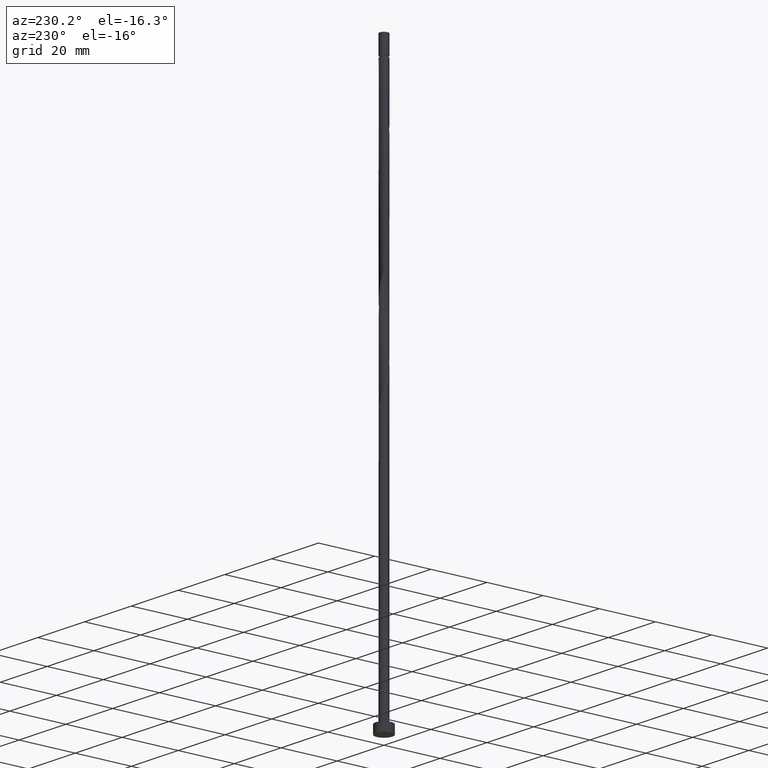
[diagram: clean part render]
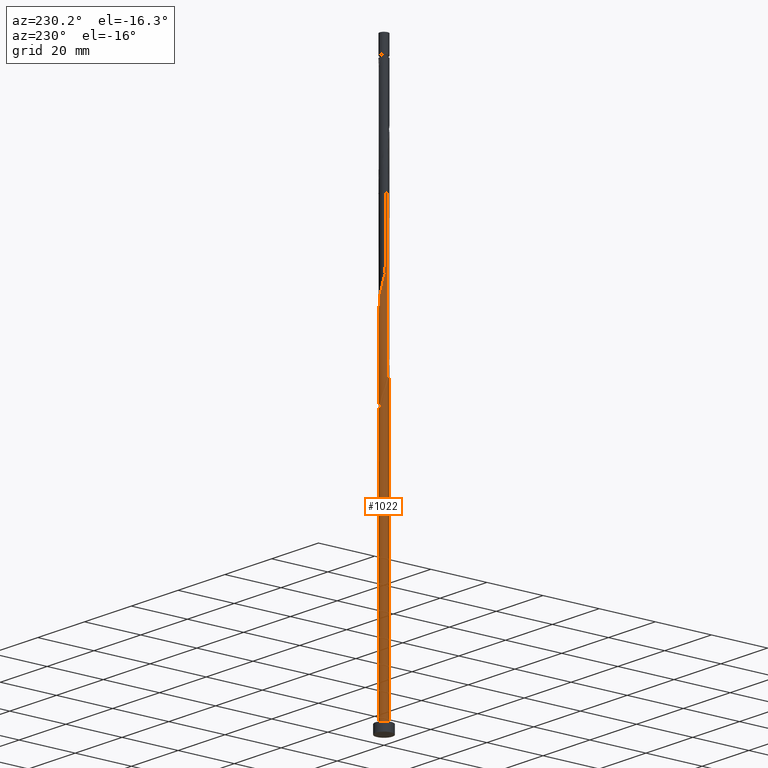
[diagram: same view with one face highlighted and labeled with its STEP entity id]
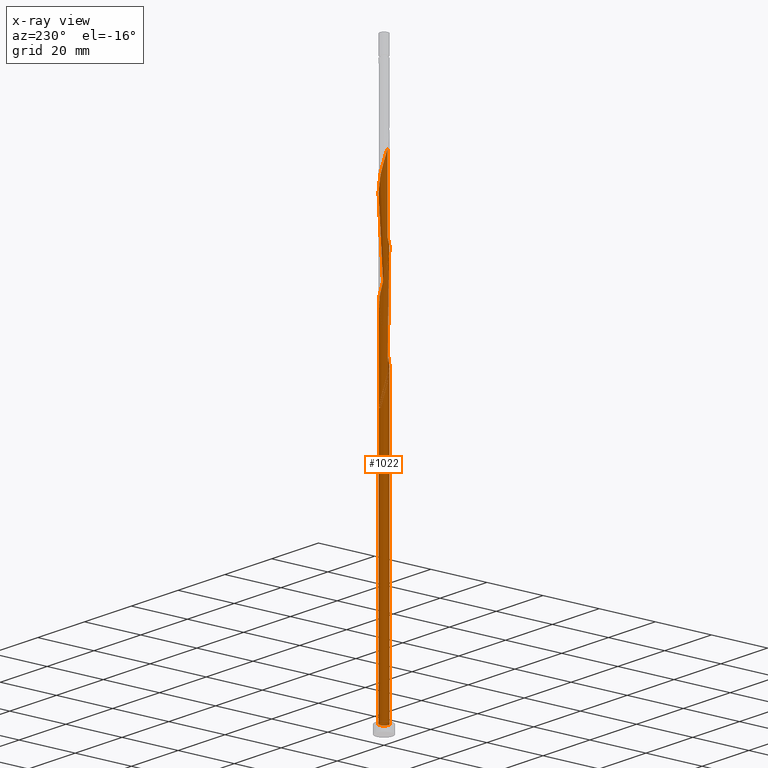
[diagram: x-ray of the same camera — body ghosted, the highlighted face saturated]
A machine part, auxiliary view. The second image highlights one B-rep face of the part: STEP entity #1022.
The next image is the same camera in x-ray: the body ghosted, the highlighted face saturated — about 0% of this face is hidden behind the body in this view.
In plain terms, the highlighted cylindrical surface (bore or boss wall) has radius 1.5 mm, axis along (-0, -0, -1).
Its self-contained STEP definition (entity closure, byte-faithful):
#4 = CARTESIAN_POINT ( 'NONE',  ( -0.6637447469323254357, -1.359573744300763609, 139.4728078568822696 ) ) ;
#14 = CARTESIAN_POINT ( 'NONE',  ( -0.8455530274166278559, 1.254606684622248558, 128.3616967457711837 ) ) ;
#25 = CARTESIAN_POINT ( 'NONE',  ( 1.509297774348952625, 0.1049670596785136911, 150.5839189679933554 ) ) ;
#33 = CARTESIAN_POINT ( 'NONE',  ( 0.9930117713720183481, 1.141457610771798192, 154.7505856346600410 ) ) ;
#58 = CARTESIAN_POINT ( 'NONE',  ( 0.1049670596785151205, 1.509297774348950849, 93.63947452354895518 ) ) ;
#61 = CARTESIAN_POINT ( 'NONE',  ( -0.6687892150010436021, 1.342654455136649938, 94.33391896799336962 ) ) ;
#117 = CARTESIAN_POINT ( 'NONE',  ( -0.9930117713720176820, -1.141457610771798636, 104.7505856346600552 ) ) ;
#123 = CARTESIAN_POINT ( 'NONE',  ( -0.9930117713720176820, -1.141457610771798636, 138.0839189679934123 ) ) ;
#131 = VERTEX_POINT ( 'NONE', #1260 ) ;
#133 = CARTESIAN_POINT ( 'NONE',  ( 0.6637447469323256577, 1.359573744300763387, 122.8061411902156124 ) ) ;
#142 = CARTESIAN_POINT ( 'NONE',  ( -1.123809227997133009, -0.9935053190942130241, 137.3894745235489552 ) ) ;
#152 = CARTESIAN_POINT ( 'NONE',  ( 0.2892446148792531257, 1.485037173957477030, 124.1950300791044839 ) ) ;
#159 = CARTESIAN_POINT ( 'NONE',  ( 0.8455530274166269677, -1.254606684622249224, 145.0283634124378409 ) ) ;
#168 = CARTESIAN_POINT ( 'NONE',  ( 0.2984962311319874217, 1.470000000000000195, 92.94503007910451231 ) ) ;
#171 = CARTESIAN_POINT ( 'NONE',  ( -1.250515677536281789, 0.8283782591521712257, 97.11169674577118371 ) ) ;
#182 = CARTESIAN_POINT ( 'NONE',  ( -0.6687892150010436021, 1.342654455136649938, 161.0005856346599842 ) ) ;
#190 = CARTESIAN_POINT ( 'NONE',  ( -0.09213877760036824627, 1.497167474153212607, 94.33391896799339804 ) ) ;
#198 = EDGE_CURVE ( 'NONE', #1136, #627, #1579, .T. ) ;
#213 = CARTESIAN_POINT ( 'NONE',  ( -1.470000000000001528, -0.2984962311319871442, 101.2783634124377983 ) ) ;
#221 = CARTESIAN_POINT ( 'NONE',  ( -0.8283782591521712257, -1.250515677536281123, 105.4450300791044839 ) ) ;
#228 = CARTESIAN_POINT ( 'NONE',  ( 1.500000000000000222, 0.000000000000000000, 3.000000000000000000 ) ) ;
#250 = ORIENTED_EDGE ( 'NONE', *, *, #878, .F. ) ;
#256 = CARTESIAN_POINT ( 'NONE',  ( 1.250515677536280901, -0.8283782591521717809, 147.1116967457712121 ) ) ;
#267 = CARTESIAN_POINT ( 'NONE',  ( 1.141457610771798636, -0.9930117713720176820, 146.4172523013266698 ) ) ;
#275 = CARTESIAN_POINT ( 'NONE',  ( -1.509297774348952625, -0.1049670596785148846, 133.9172523013266982 ) ) ;
#278 = ORIENTED_EDGE ( 'NONE', *, *, #951, .T. ) ;
#283 = CARTESIAN_POINT ( 'NONE',  ( 1.254606684622249224, 0.8455530274166267457, 153.3616967457711837 ) ) ;
#287 = CARTESIAN_POINT ( 'NONE',  ( -1.141457610771799080, 0.9930117713720173489, 96.41725230132672664 ) ) ;
#297 = CARTESIAN_POINT ( 'NONE',  ( -0.9935053190942132462, 1.123809227997133009, 95.72280785688226956 ) ) ;
#301 = CARTESIAN_POINT ( 'NONE',  ( -1.250515677536281789, 0.8283782591521712257, 163.7783634124377841 ) ) ;
#304 = EDGE_CURVE ( 'NONE', #739, #996, #353, .T. ) ;
#308 = DIRECTION ( 'NONE',  ( 1.000000000000000000, 0.000000000000000000, 0.000000000000000000 ) ) ;
#310 = CARTESIAN_POINT ( 'NONE',  ( -1.485037173957477030, 0.2892446148792523486, 165.8616967457711837 ) ) ;
#317 = CARTESIAN_POINT ( 'NONE',  ( -0.4764946809057876154, 1.422305459129118654, 95.72280785688229798 ) ) ;
#325 = CARTESIAN_POINT ( 'NONE',  ( -1.500000000000000222, 0.000000000000000000, 3.000000000000000000 ) ) ;
#349 = DIRECTION ( 'NONE',  ( -1.000000000000000000, 0.000000000000000000, 0.000000000000000000 ) ) ;
#353 = CIRCLE ( 'NONE', #692, 1.500000000000000222 ) ;
#364 = AXIS2_PLACEMENT_3D ( 'NONE', #925, #932, #1187 ) ;
#365 = CARTESIAN_POINT ( 'NONE',  ( -1.500000000000001998, -1.652393181019979830E-15, 100.2147967572277878 ) ) ;
#380 = CARTESIAN_POINT ( 'NONE',  ( -1.422305459129119987, 0.4764946809057889476, 131.8339189679933838 ) ) ;
#387 = CARTESIAN_POINT ( 'NONE',  ( 1.422305459129119987, -0.4764946809057893917, 115.1672523013267266 ) ) ;
#399 = CARTESIAN_POINT ( 'NONE',  ( 1.497167474153215050, -0.09213877760036973119, 116.5561411902156408 ) ) ;
#407 = CARTESIAN_POINT ( 'NONE',  ( 1.430702225651051984, 0.4920254025854590152, 151.9728078568822696 ) ) ;
#415 = CARTESIAN_POINT ( 'NONE',  ( 1.359573744300763387, -0.6637447469323254357, 114.4728078568822838 ) ) ;
#418 = CARTESIAN_POINT ( 'NONE',  ( -1.500000000000002442, 0.04611292748650613893, 100.0516330691996387 ) ) ;
#423 = EDGE_CURVE ( 'NONE', #996, #739, #1454, .T. ) ;
#424 = FACE_OUTER_BOUND ( 'NONE', #1297, .T. ) ;
#439 = CARTESIAN_POINT ( 'NONE',  ( -1.500000000000000444, 0.1507556722888815925, 101.8085036984586367 ) ) ;
#444 = VECTOR ( 'NONE', #1063, 1000.000000000000000 ) ;
#455 = CARTESIAN_POINT ( 'NONE',  ( -1.141457610771799080, 0.9930117713720173489, 163.0839189679933838 ) ) ;
#478 = DIRECTION ( 'NONE',  ( -0.000000000000000000, -0.000000000000000000, -1.000000000000000000 ) ) ;
#489 = CARTESIAN_POINT ( 'NONE',  ( -1.500000000000001332, -0.1507556722888861722, 100.7482231264170451 ) ) ;
#496 = ORIENTED_EDGE ( 'NONE', *, *, #423, .T. ) ;
#508 = CARTESIAN_POINT ( 'NONE',  ( 0.4764946809057893917, 1.422305459129119765, 156.8339189679934123 ) ) ;
#516 = CARTESIAN_POINT ( 'NONE',  ( 0.1049670596785144822, -1.509297774348952625, 142.2505856346600694 ) ) ;
#523 = CARTESIAN_POINT ( 'NONE',  ( -1.250515677536281789, 0.8283782591521712257, 130.4450300791044981 ) ) ;
#532 = CARTESIAN_POINT ( 'NONE',  ( 1.359573744300763387, -0.6637447469323254357, 147.8061411902156408 ) ) ;
#539 = CARTESIAN_POINT ( 'NONE',  ( 0.8283782591521714478, 1.250515677536281123, 155.4450300791044981 ) ) ;
#543 = ORIENTED_EDGE ( 'NONE', *, *, #304, .T. ) ;
#544 = ORIENTED_EDGE ( 'NONE', *, *, #848, .T. ) ;
#550 = CARTESIAN_POINT ( 'NONE',  ( 0.2984962311319874217, 1.470000000000000195, 92.94503007910451231 ) ) ;
#560 = CARTESIAN_POINT ( 'NONE',  ( -1.497167474153214606, 0.09213877760036888465, 166.5561411902155839 ) ) ;
#563 = CARTESIAN_POINT ( 'NONE',  ( -0.4920254025854592927, 1.430702225651051318, 93.63947452354894097 ) ) ;
#568 = CARTESIAN_POINT ( 'NONE',  ( -1.470000000000000195, 0.2984962311319871997, 101.2783634124378409 ) ) ;
#623 = CARTESIAN_POINT ( 'NONE',  ( -0.6637447469323254357, -1.359573744300763609, 106.1394745235489552 ) ) ;
#627 = VERTEX_POINT ( 'NONE', #1344 ) ;
#630 = CARTESIAN_POINT ( 'NONE',  ( -0.6687892150010436021, 1.342654455136649938, 127.6672523013267124 ) ) ;
#636 = CARTESIAN_POINT ( 'NONE',  ( -1.485037173957477030, 0.2892446148792523486, 132.5283634124378409 ) ) ;
#643 = CARTESIAN_POINT ( 'NONE',  ( 1.422305459129119987, -0.4764946809057893917, 148.5005856346600694 ) ) ;
#649 = CARTESIAN_POINT ( 'NONE',  ( -0.1049670596785134691, 1.509297774348952625, 125.5839189679934265 ) ) ;
#656 = CARTESIAN_POINT ( 'NONE',  ( -1.342654455136649938, -0.6687892150010432690, 136.0005856346600126 ) ) ;
#663 = CARTESIAN_POINT ( 'NONE',  ( -1.342654455136647940, 0.6687892150010432690, 99.88947452354892675 ) ) ;
#668 = CARTESIAN_POINT ( 'NONE',  ( -1.485037173957477030, 0.2892446148792523486, 99.19503007910449810 ) ) ;
#683 = CARTESIAN_POINT ( 'NONE',  ( -0.8455530274166278559, 1.254606684622248558, 161.6950300791044981 ) ) ;
#689 = CYLINDRICAL_SURFACE ( 'NONE', #364, 1.500000000000000222 ) ;
#692 = AXIS2_PLACEMENT_3D ( 'NONE', #1169, #1193, #308 ) ;
#697 = CARTESIAN_POINT ( 'NONE',  ( -1.359573744300763609, 0.6637447469323251026, 164.4728078568822980 ) ) ;
#698 = CARTESIAN_POINT ( 'NONE',  ( -1.500000000000000222, 0.000000000000000000, 200.0000000000000000 ) ) ;
#715 = CARTESIAN_POINT ( 'NONE',  ( 0.8455530274166269677, -1.254606684622249224, 111.6950300791045123 ) ) ;
#724 = DIRECTION ( 'NONE',  ( 0.000000000000000000, -0.000000000000000000, -1.000000000000000000 ) ) ;
#730 = CARTESIAN_POINT ( 'NONE',  ( -0.2984962311319868666, 1.470000000000001972, 92.94503007910451231 ) ) ;
#731 = EDGE_CURVE ( 'NONE', #131, #1382, #828, .T. ) ;
#739 = VERTEX_POINT ( 'NONE', #228 ) ;
#741 = CARTESIAN_POINT ( 'NONE',  ( 0.000000000000000000, 0.000000000000000000, 92.94503007910451231 ) ) ;
#747 = CARTESIAN_POINT ( 'NONE',  ( -1.430702225651051984, -0.4920254025854591262, 135.3061411902156408 ) ) ;
#755 = CARTESIAN_POINT ( 'NONE',  ( -0.4920254025854592927, 1.430702225651051318, 126.9728078568822696 ) ) ;
#764 = CARTESIAN_POINT ( 'NONE',  ( 0.8283782591521714478, 1.250515677536281123, 122.1116967457711553 ) ) ;
#770 = CARTESIAN_POINT ( 'NONE',  ( -1.470000000000001528, -0.2984962311319871442, 134.6116967457711837 ) ) ;
#778 = CARTESIAN_POINT ( 'NONE',  ( 1.141457610771798636, -0.9930117713720176820, 113.0839189679933838 ) ) ;
#783 = CARTESIAN_POINT ( 'NONE',  ( -1.359573744300763609, 0.6637447469323251026, 97.80614119021561237 ) ) ;
#788 = CARTESIAN_POINT ( 'NONE',  ( -1.500000000000000222, 0.000000000000000000, 200.0000000000000000 ) ) ;
#792 = CARTESIAN_POINT ( 'NONE',  ( -0.2984962311319869221, 1.470000000000001972, 92.94503007910451231 ) ) ;
#804 = CARTESIAN_POINT ( 'NONE',  ( -1.254606684622246782, 0.8455530274166268567, 99.19503007910449810 ) ) ;
#812 = CARTESIAN_POINT ( 'NONE',  ( -0.2984962311319868111, 1.470000000000001528, 159.6116967457711553 ) ) ;
#819 = CARTESIAN_POINT ( 'NONE',  ( -1.500000000000002220, 9.570422043916622849E-16, 166.8814634238944450 ) ) ;
#828 = LINE ( 'NONE', #698, #1463 ) ;
#839 = CARTESIAN_POINT ( 'NONE',  ( 0.6687892150010429360, -1.342654455136650382, 111.0005856346600410 ) ) ;
#848 = EDGE_CURVE ( 'NONE', #1136, #966, #1597, .T. ) ;
#877 = CARTESIAN_POINT ( 'NONE',  ( -0.4764946809057892807, -1.422305459129119987, 140.1672523013267266 ) ) ;
#878 = EDGE_CURVE ( 'NONE', #627, #131, #1477, .T. ) ;
#888 = CARTESIAN_POINT ( 'NONE',  ( -1.141457610771799080, 0.9930117713720173489, 129.7505856346600410 ) ) ;
#895 = CARTESIAN_POINT ( 'NONE',  ( 1.342654455136650382, 0.6687892150010426029, 119.3339189679933980 ) ) ;
#904 = AXIS2_PLACEMENT_3D ( 'NONE', #1045, #1547, #1408 ) ;
#906 = CARTESIAN_POINT ( 'NONE',  ( 1.342654455136650382, 0.6687892150010426029, 152.6672523013267835 ) ) ;
#915 = CARTESIAN_POINT ( 'NONE',  ( 1.254606684622249224, 0.8455530274166267457, 120.0283634124378267 ) ) ;
#925 = CARTESIAN_POINT ( 'NONE',  ( 0.000000000000000000, 0.000000000000000000, 200.0000000000000000 ) ) ;
#932 = DIRECTION ( 'NONE',  ( -0.000000000000000000, -0.000000000000000000, -1.000000000000000000 ) ) ;
#943 = CARTESIAN_POINT ( 'NONE',  ( -0.9930117713720157946, 1.141457610771797970, 97.80614119021559816 ) ) ;
#951 = EDGE_CURVE ( 'NONE', #627, #996, #1171, .T. ) ;
#953 = CARTESIAN_POINT ( 'NONE',  ( 0.2892446148792531257, 1.485037173957477030, 157.5283634124377841 ) ) ;
#962 = CARTESIAN_POINT ( 'NONE',  ( -1.342654455136649938, -0.6687892150010432690, 102.6672523013267266 ) ) ;
#966 = VERTEX_POINT ( 'NONE', #550 ) ;
#985 = CARTESIAN_POINT ( 'NONE',  ( -1.430702225651051984, -0.4920254025854591262, 101.9728078568822696 ) ) ;
#993 = CARTESIAN_POINT ( 'NONE',  ( 0.2984962311319870332, -1.470000000000001528, 109.6116967457711553 ) ) ;
#996 = VERTEX_POINT ( 'NONE', #325 ) ;
#998 = EDGE_CURVE ( 'NONE', #1382, #966, #1308, .T. ) ;
#1001 = CARTESIAN_POINT ( 'NONE',  ( -0.9935053190942132462, 1.123809227997133009, 129.0561411902156408 ) ) ;
#1010 = CARTESIAN_POINT ( 'NONE',  ( -1.497167474153214606, 0.09213877760036888465, 133.2228078568822980 ) ) ;
#1018 = CARTESIAN_POINT ( 'NONE',  ( -0.2892446148792523486, -1.485037173957477030, 140.8616967457711837 ) ) ;
#1022 = ADVANCED_FACE ( 'NONE', ( #424 ), #689, .T. ) ;
#1026 = CARTESIAN_POINT ( 'NONE',  ( 1.470000000000001528, 0.2984962311319869221, 151.2783634124377841 ) ) ;
#1029 = CARTESIAN_POINT ( 'NONE',  ( -0.8455530274166278559, 1.254606684622248558, 95.02836341243782670 ) ) ;
#1034 = CARTESIAN_POINT ( 'NONE',  ( 0.6637447469323256577, 1.359573744300763387, 156.1394745235489268 ) ) ;
#1037 = ORIENTED_EDGE ( 'NONE', *, *, #731, .F. ) ;
#1038 = ORIENTED_EDGE ( 'NONE', *, *, #198, .F. ) ;
#1039 = CARTESIAN_POINT ( 'NONE',  ( -1.422305459129119987, 0.4764946809057889476, 98.50058563466005523 ) ) ;
#1043 = CARTESIAN_POINT ( 'NONE',  ( -1.123809227997131233, 0.9935053190942124690, 98.50058563466006945 ) ) ;
#1045 = CARTESIAN_POINT ( 'NONE',  ( 0.000000000000000000, 0.000000000000000000, 3.000000000000000000 ) ) ;
#1057 = CARTESIAN_POINT ( 'NONE',  ( -0.9935053190942132462, 1.123809227997133009, 162.3894745235489836 ) ) ;
#1063 = DIRECTION ( 'NONE',  ( -0.000000000000000000, -0.000000000000000000, -1.000000000000000000 ) ) ;
#1069 = CARTESIAN_POINT ( 'NONE',  ( 0.09213877760036982834, 1.497167474153215050, 158.2228078568822696 ) ) ;
#1092 = CARTESIAN_POINT ( 'NONE',  ( -0.09213877760036894016, -1.497167474153214606, 108.2228078568822838 ) ) ;
#1096 = AXIS2_PLACEMENT_3D ( 'NONE', #741, #724, #349 ) ;
#1117 = CARTESIAN_POINT ( 'NONE',  ( -0.4764946809057892807, -1.422305459129119987, 106.8339189679933838 ) ) ;
#1126 = CARTESIAN_POINT ( 'NONE',  ( 1.430702225651051984, 0.4920254025854590152, 118.6394745235489552 ) ) ;
#1132 = CARTESIAN_POINT ( 'NONE',  ( 1.497167474153215050, -0.09213877760036973119, 149.8894745235489268 ) ) ;
#1136 = VERTEX_POINT ( 'NONE', #730 ) ;
#1142 = CARTESIAN_POINT ( 'NONE',  ( 0.09213877760036982834, 1.497167474153215050, 124.8894745235489410 ) ) ;
#1149 = CARTESIAN_POINT ( 'NONE',  ( -0.09213877760036894016, -1.497167474153214606, 141.5561411902155839 ) ) ;
#1155 = CARTESIAN_POINT ( 'NONE',  ( 1.123809227997133231, 0.9935053190942123580, 154.0561411902155839 ) ) ;
#1160 = CARTESIAN_POINT ( 'NONE',  ( -1.500000000000000222, -1.861746163230667258E-15, 102.3419300676479224 ) ) ;
#1169 = CARTESIAN_POINT ( 'NONE',  ( 0.000000000000000000, 0.000000000000000000, 3.000000000000000000 ) ) ;
#1171 = LINE ( 'NONE', #788, #444 ) ;
#1179 = CARTESIAN_POINT ( 'NONE',  ( -0.6637447469323237703, 1.359573744300762499, 96.41725230132672664 ) ) ;
#1187 = DIRECTION ( 'NONE',  ( -1.000000000000000000, 0.000000000000000000, 0.000000000000000000 ) ) ;
#1193 = DIRECTION ( 'NONE',  ( 0.000000000000000000, 0.000000000000000000, 1.000000000000000000 ) ) ;
#1195 = CARTESIAN_POINT ( 'NONE',  ( -1.422305459129119987, 0.4764946809057889476, 165.1672523013266698 ) ) ;
#1246 = CARTESIAN_POINT ( 'NONE',  ( 0.4920254025854591262, -1.430702225651051984, 143.6394745235489836 ) ) ;
#1255 = CARTESIAN_POINT ( 'NONE',  ( 1.123809227997133231, 0.9935053190942123580, 120.7228078568822554 ) ) ;
#1260 = CARTESIAN_POINT ( 'NONE',  ( -1.500000000000002220, 9.570422043916622849E-16, 166.8814634238944166 ) ) ;
#1267 = CARTESIAN_POINT ( 'NONE',  ( -0.8283782591521712257, -1.250515677536281123, 138.7783634124378125 ) ) ;
#1276 = CARTESIAN_POINT ( 'NONE',  ( 0.9930117713720183481, 1.141457610771798192, 121.4172523013267124 ) ) ;
#1282 = CARTESIAN_POINT ( 'NONE',  ( 0.4764946809057893917, 1.422305459129119765, 123.5005856346600552 ) ) ;
#1292 = CARTESIAN_POINT ( 'NONE',  ( -1.500000000000000222, -1.861746163230667258E-15, 102.3419300676479224 ) ) ;
#1297 = EDGE_LOOP ( 'NONE', ( #1037, #250, #278, #496, #543, #1618, #1038, #544, #1385 ) ) ;
#1300 = CARTESIAN_POINT ( 'NONE',  ( -1.500000000000002442, 0.04611292748650754753, 166.7182997358662817 ) ) ;
#1308 =( BOUNDED_CURVE ( )  B_SPLINE_CURVE ( 2, ( #1292, #439, #568, #1447, #663, #804, #1043, #943, #1327, #1179, #317, #1554, #190, #58, #168 ),
 .UNSPECIFIED., .F., .T. ) 
 B_SPLINE_CURVE_WITH_KNOTS ( ( 3, 2, 2, 2, 2, 2, 2, 3 ),
 ( 0.9295317669814462391, 0.9375000000000000000, 0.9479166666666666297, 0.9583333333333333703, 0.9687500000000000000, 0.9791666666666666297, 0.9895833333333333703, 1.000000000000000000 ),
 .UNSPECIFIED. ) 
 CURVE ( )  GEOMETRIC_REPRESENTATION_ITEM ( )  RATIONAL_B_SPLINE_CURVE ( ( 0.9062941362546607094, 0.9031415850403649026, 0.9090909090909403689, 0.9013135103398587367, 0.9090909090909403689, 0.9013135103398587367, 0.9090909090909403689, 0.9013135103398587367, 0.9090909090909403689, 0.9013135103398587367, 0.9090909090909403689, 0.9013135103398587367, 0.9090909090909403689, 0.9013135103398587367, 0.9090909090909403689 ) ) 
 REPRESENTATION_ITEM ( '' )  );
#1327 = CARTESIAN_POINT ( 'NONE',  ( -0.8283782591521697825, 1.250515677536280235, 97.11169674577119793 ) ) ;
#1344 = CARTESIAN_POINT ( 'NONE',  ( -1.500000000000001998, -1.652393181019979830E-15, 100.2147967572277878 ) ) ;
#1381 = CARTESIAN_POINT ( 'NONE',  ( 0.9935053190942130241, -1.123809227997133009, 145.7228078568822127 ) ) ;
#1382 = VERTEX_POINT ( 'NONE', #1160 ) ;
#1385 = ORIENTED_EDGE ( 'NONE', *, *, #998, .F. ) ;
#1391 = CARTESIAN_POINT ( 'NONE',  ( 0.6687892150010429360, -1.342654455136650382, 144.3339189679933838 ) ) ;
#1400 = CARTESIAN_POINT ( 'NONE',  ( -1.359573744300763609, 0.6637447469323251026, 131.1394745235489552 ) ) ;
#1407 = CARTESIAN_POINT ( 'NONE',  ( -0.2984962311319868111, 1.470000000000001528, 126.2783634124378693 ) ) ;
#1408 = DIRECTION ( 'NONE',  ( 1.000000000000000000, 0.000000000000000000, 0.000000000000000000 ) ) ;
#1418 = CARTESIAN_POINT ( 'NONE',  ( 1.470000000000001528, 0.2984962311319869221, 117.9450300791044839 ) ) ;
#1422 = CARTESIAN_POINT ( 'NONE',  ( -1.497167474153214606, 0.09213877760036888465, 99.88947452354894097 ) ) ;
#1428 = CARTESIAN_POINT ( 'NONE',  ( -1.500000000000001998, -1.652393181019979830E-15, 100.2147967572277878 ) ) ;
#1447 = CARTESIAN_POINT ( 'NONE',  ( -1.430702225651049320, 0.4920254025854591262, 100.5839189679933980 ) ) ;
#1454 = CIRCLE ( 'NONE', #904, 1.500000000000000222 ) ;
#1463 = VECTOR ( 'NONE', #478, 1000.000000000000000 ) ;
#1464 = CARTESIAN_POINT ( 'NONE',  ( -0.2892446148792523486, -1.485037173957477030, 107.5283634124378409 ) ) ;
#1474 = CARTESIAN_POINT ( 'NONE',  ( -1.254606684622249224, -0.8455530274166275229, 103.3616967457711553 ) ) ;
#1477 =( BOUNDED_CURVE ( )  B_SPLINE_CURVE ( 2, ( #365, #489, #213, #985, #962, #1474, #1491, #117, #221, #623, #1117, #1464, #1092, #1621, #993, #1498, #839, #715, #1598, #778, #1520, #415, #387, #1539, #399, #1505, #1418, #1126, #895, #915, #1255, #1276, #764, #133, #1282, #152, #1142, #649, #1407, #755, #630, #14, #1001, #888, #523, #1400, #380, #636, #1010, #275, #770, #747, #656, #1513, #142, #123, #1267, #4, #877, #1018, #1149, #516, #1530, #1246, #1391, #159, #1381, #267, #256, #532, #643, #1628, #1132, #25, #1026, #407, #906, #283, #1155, #33, #539, #1034, #508, #953, #1069, #1546, #812, #1562, #182, #683, #1057, #455, #301, #697, #1195, #310, #560, #1300, #819 ),
 .UNSPECIFIED., .F., .T. ) 
 B_SPLINE_CURVE_WITH_KNOTS ( ( 3, 2, 2, 2, 2, 2, 2, 2, 2, 2, 2, 2, 2, 2, 2, 2, 2, 2, 2, 2, 2, 2, 2, 2, 2, 2, 2, 2, 2, 2, 2, 2, 2, 2, 2, 2, 2, 2, 2, 2, 2, 2, 2, 2, 2, 2, 2, 2, 2, 3 ),
 ( 0.05453176698144650975, 0.06250000000000000000, 0.07291666666666662966, 0.08333333333333337034, 0.09375000000000000000, 0.1041666666666666297, 0.1145833333333333703, 0.1250000000000000000, 0.1354166666666666297, 0.1458333333333333703, 0.1562500000000000000, 0.1666666666666666297, 0.1770833333333333703, 0.1875000000000000000, 0.1979166666666666297, 0.2083333333333333703, 0.2187500000000000000, 0.2291666666666666297, 0.2395833333333333703, 0.2500000000000000000, 0.2604166666666666297, 0.2708333333333333703, 0.2812500000000000000, 0.2916666666666666297, 0.3020833333333333703, 0.3125000000000000000, 0.3229166666666666297, 0.3333333333333333703, 0.3437500000000000000, 0.3541666666666666297, 0.3645833333333333703, 0.3750000000000000000, 0.3854166666666666297, 0.3958333333333333703, 0.4062500000000000000, 0.4166666666666666297, 0.4270833333333333703, 0.4375000000000000000, 0.4479166666666666297, 0.4583333333333333703, 0.4687500000000000000, 0.4791666666666666297, 0.4895833333333333703, 0.5000000000000000000, 0.5104166666666667407, 0.5208333333333332593, 0.5312500000000000000, 0.5416666666666667407, 0.5520833333333332593, 0.5545317669814463502 ),
 .UNSPECIFIED. ) 
 CURVE ( )  GEOMETRIC_REPRESENTATION_ITEM ( )  RATIONAL_B_SPLINE_CURVE ( ( 0.9062941362546661495, 0.9031415850403705647, 0.9090909090909460311, 0.9013135103398642878, 0.9090909090909460311, 0.9013135103398642878, 0.9090909090909460311, 0.9013135103398642878, 0.9090909090909460311, 0.9013135103398642878, 0.9090909090909460311, 0.9013135103398642878, 0.9090909090909460311, 0.9013135103398642878, 0.9090909090909460311, 0.9013135103398642878, 0.9090909090909460311, 0.9013135103398642878, 0.9090909090909460311, 0.9013135103398642878, 0.9090909090909460311, 0.9013135103398642878, 0.9090909090909460311, 0.9013135103398642878, 0.9090909090909460311, 0.9013135103398642878, 0.9090909090909460311, 0.9013135103398642878, 0.9090909090909460311, 0.9013135103398642878, 0.9090909090909460311, 0.9013135103398642878, 0.9090909090909460311, 0.9013135103398642878, 0.9090909090909460311, 0.9013135103398642878, 0.9090909090909460311, 0.9013135103398642878, 0.9090909090909460311, 0.9013135103398642878, 0.9090909090909460311, 0.9013135103398642878, 0.9090909090909460311, 0.9013135103398642878, 0.9090909090909460311, 0.9013135103398642878, 0.9090909090909460311, 0.9013135103398642878, 0.9090909090909460311, 0.9013135103398642878, 0.9090909090909460311, 0.9013135103398642878, 0.9090909090909460311, 0.9013135103398642878, 0.9090909090909460311, 0.9013135103398642878, 0.9090909090909460311, 0.9013135103398642878, 0.9090909090909460311, 0.9013135103398642878, 0.9090909090909460311, 0.9013135103398642878, 0.9090909090909460311, 0.9013135103398642878, 0.9090909090909460311, 0.9013135103398642878, 0.9090909090909460311, 0.9013135103398642878, 0.9090909090909460311, 0.9013135103398642878, 0.9090909090909460311, 0.9013135103398642878, 0.9090909090909460311, 0.9013135103398642878, 0.9090909090909460311, 0.9013135103398642878, 0.9090909090909460311, 0.9013135103398642878, 0.9090909090909460311, 0.9013135103398642878, 0.9090909090909460311, 0.9013135103398642878, 0.9090909090909460311, 0.9013135103398642878, 0.9090909090909460311, 0.9013135103398642878, 0.9090909090909460311, 0.9013135103398642878, 0.9090909090909460311, 0.9013135103398642878, 0.9090909090909460311, 0.9013135103398642878, 0.9090909090909460311, 0.9013135103398642878, 0.9090909090909460311, 0.9013135103398642878, 0.9090909090909460311, 0.9072628343904396431, 0.9062941362546661495 ) ) 
 REPRESENTATION_ITEM ( '' )  );
#1491 = CARTESIAN_POINT ( 'NONE',  ( -1.123809227997133009, -0.9935053190942130241, 104.0561411902156266 ) ) ;
#1498 = CARTESIAN_POINT ( 'NONE',  ( 0.4920254025854591262, -1.430702225651051984, 110.3061411902155982 ) ) ;
#1505 = CARTESIAN_POINT ( 'NONE',  ( 1.509297774348952625, 0.1049670596785136911, 117.2505856346600552 ) ) ;
#1513 = CARTESIAN_POINT ( 'NONE',  ( -1.254606684622249224, -0.8455530274166275229, 136.6950300791045265 ) ) ;
#1520 = CARTESIAN_POINT ( 'NONE',  ( 1.250515677536280901, -0.8283782591521717809, 113.7783634124378409 ) ) ;
#1530 = CARTESIAN_POINT ( 'NONE',  ( 0.2984962311319870332, -1.470000000000001528, 142.9450300791045265 ) ) ;
#1539 = CARTESIAN_POINT ( 'NONE',  ( 1.485037173957477030, -0.2892446148792529592, 115.8616967457711837 ) ) ;
#1546 = CARTESIAN_POINT ( 'NONE',  ( -0.1049670596785134691, 1.509297774348952625, 158.9172523013267551 ) ) ;
#1547 = DIRECTION ( 'NONE',  ( 0.000000000000000000, 0.000000000000000000, 1.000000000000000000 ) ) ;
#1554 = CARTESIAN_POINT ( 'NONE',  ( -0.2892446148792516825, 1.485037173957474366, 95.02836341243784091 ) ) ;
#1562 = CARTESIAN_POINT ( 'NONE',  ( -0.4920254025854592927, 1.430702225651051318, 160.3061411902156124 ) ) ;
#1579 =( BOUNDED_CURVE ( )  B_SPLINE_CURVE ( 2, ( #792, #563, #61, #1029, #297, #287, #171, #783, #1039, #668, #1422, #418, #1428 ),
 .UNSPECIFIED., .F., .T. ) 
 B_SPLINE_CURVE_WITH_KNOTS ( ( 3, 2, 2, 2, 2, 2, 3 ),
 ( 0.000000000000000000, 0.01041666666666662966, 0.02083333333333337034, 0.03125000000000000000, 0.04166666666666662966, 0.05208333333333337034, 0.05453176698144650975 ),
 .UNSPECIFIED. ) 
 CURVE ( )  GEOMETRIC_REPRESENTATION_ITEM ( )  RATIONAL_B_SPLINE_CURVE ( ( 0.9090909090909460311, 0.9013135103398642878, 0.9090909090909460311, 0.9013135103398642878, 0.9090909090909460311, 0.9013135103398642878, 0.9090909090909460311, 0.9013135103398642878, 0.9090909090909460311, 0.9013135103398642878, 0.9090909090909460311, 0.9072628343904396431, 0.9062941362546661495 ) ) 
 REPRESENTATION_ITEM ( '' )  );
#1597 = CIRCLE ( 'NONE', #1096, 1.500000000000000222 ) ;
#1598 = CARTESIAN_POINT ( 'NONE',  ( 0.9935053190942130241, -1.123809227997133009, 112.3894745235489410 ) ) ;
#1618 = ORIENTED_EDGE ( 'NONE', *, *, #951, .F. ) ;
#1621 = CARTESIAN_POINT ( 'NONE',  ( 0.1049670596785144822, -1.509297774348952625, 108.9172523013267266 ) ) ;
#1628 = CARTESIAN_POINT ( 'NONE',  ( 1.485037173957477030, -0.2892446148792529592, 149.1950300791044697 ) ) ;